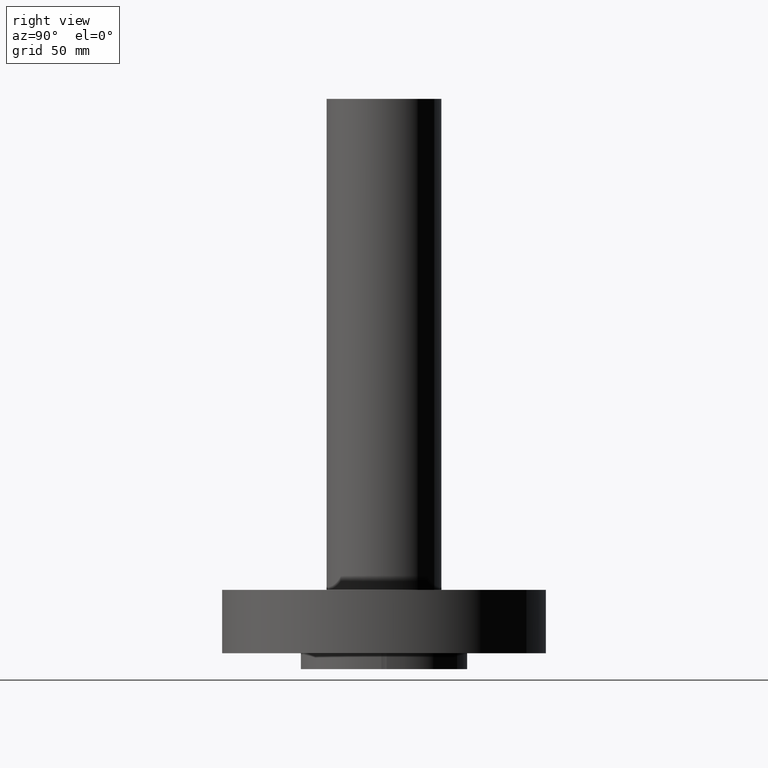
[diagram: clean part render]
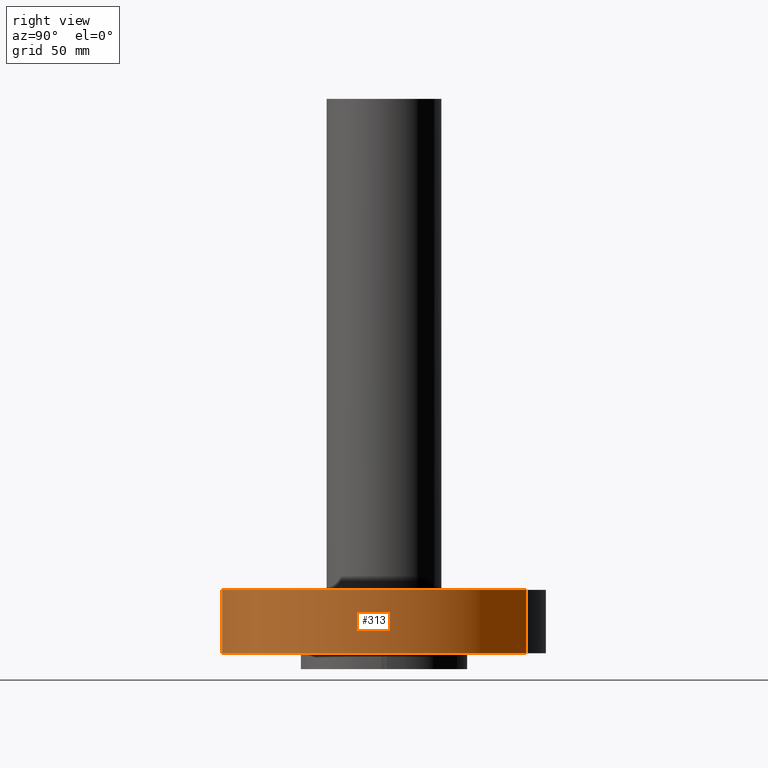
[diagram: same view with one face highlighted and labeled with its STEP entity id]
A machine part, right view. The second image highlights one B-rep face of the part: STEP entity #313.
In plain terms, the highlighted cylindrical surface (partial cylindrical patch) has radius 65.024 mm, axis along (0, 0, -1).
Its self-contained STEP definition (entity closure, byte-faithful):
#91=AXIS2_PLACEMENT_3D('Circle Axis2P3D',#89,#90,$) ;
#274=AXIS2_PLACEMENT_3D('Cylinder Axis2P3D',#271,#272,#273) ;
#304=AXIS2_PLACEMENT_3D('Circle Axis2P3D',#302,#303,$) ;
#84=CARTESIAN_POINT('Vertex',(-1.22732937883,-2.24661135845,0.)) ;
#86=CARTESIAN_POINT('Vertex',(1.22732937883,2.24661135845,0.)) ;
#89=CARTESIAN_POINT('Axis2P3D Location',(0.,0.,0.)) ;
#271=CARTESIAN_POINT('Axis2P3D Location',(0.,0.,4.25000000002)) ;
#276=CARTESIAN_POINT('Line Origine',(-1.22732937883,-2.24661135845,0.500000000002)) ;
#280=CARTESIAN_POINT('Vertex',(-1.22732937883,-2.24661135845,1.)) ;
#287=CARTESIAN_POINT('Vertex',(1.22732937883,2.24661135845,1.)) ;
#290=CARTESIAN_POINT('Line Origine',(1.22732937883,2.24661135845,0.500000000002)) ;
#302=CARTESIAN_POINT('Axis2P3D Location',(0.,0.,1.)) ;
#90=DIRECTION('Axis2P3D Direction',(0.,0.,-0.0393700787402)) ;
#272=DIRECTION('Axis2P3D Direction',(0.,0.,-0.0393700787402)) ;
#273=DIRECTION('Axis2P3D XDirection',(0.0188750212049,0.0345504945626,0.)) ;
#277=DIRECTION('Vector Direction',(0.,0.,-0.0393700787402)) ;
#291=DIRECTION('Vector Direction',(0.,0.,-0.0393700787402)) ;
#303=DIRECTION('Axis2P3D Direction',(0.,0.,-0.0393700787402)) ;
#278=VECTOR('Line Direction',#277,0.0393700787402) ;
#292=VECTOR('Line Direction',#291,0.0393700787402) ;
#308=ORIENTED_EDGE('',*,*,#93,.F.) ;
#309=ORIENTED_EDGE('',*,*,#294,.T.) ;
#310=ORIENTED_EDGE('',*,*,#306,.T.) ;
#311=ORIENTED_EDGE('',*,*,#282,.F.) ;
#313=ADVANCED_FACE('PartBody',(#312),#275,.T.) ;
#92=CIRCLE('generated circle',#91,2.56000000001) ;
#305=CIRCLE('generated circle',#304,2.56000000001) ;
#275=CYLINDRICAL_SURFACE('generated cylinder',#274,2.56000000001) ;
#93=EDGE_CURVE('',#87,#85,#92,.T.) ;
#282=EDGE_CURVE('',#85,#281,#279,.F.) ;
#294=EDGE_CURVE('',#87,#288,#293,.F.) ;
#306=EDGE_CURVE('',#288,#281,#305,.T.) ;
#307=EDGE_LOOP('',(#308,#309,#310,#311)) ;
#312=FACE_OUTER_BOUND('',#307,.T.) ;
#279=LINE('Line',#276,#278) ;
#293=LINE('Line',#290,#292) ;
#85=VERTEX_POINT('',#84) ;
#87=VERTEX_POINT('',#86) ;
#281=VERTEX_POINT('',#280) ;
#288=VERTEX_POINT('',#287) ;